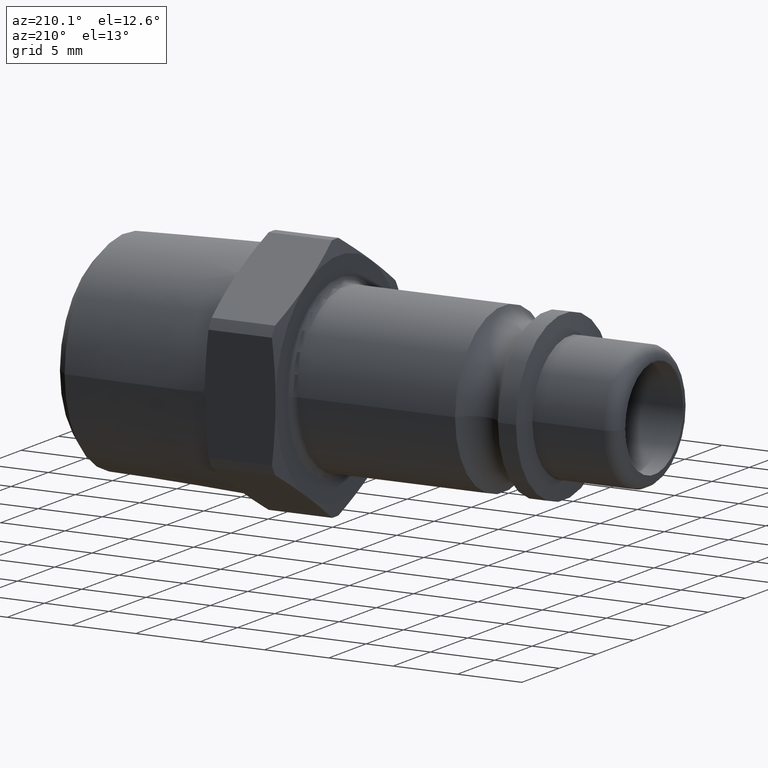
[diagram: clean part render]
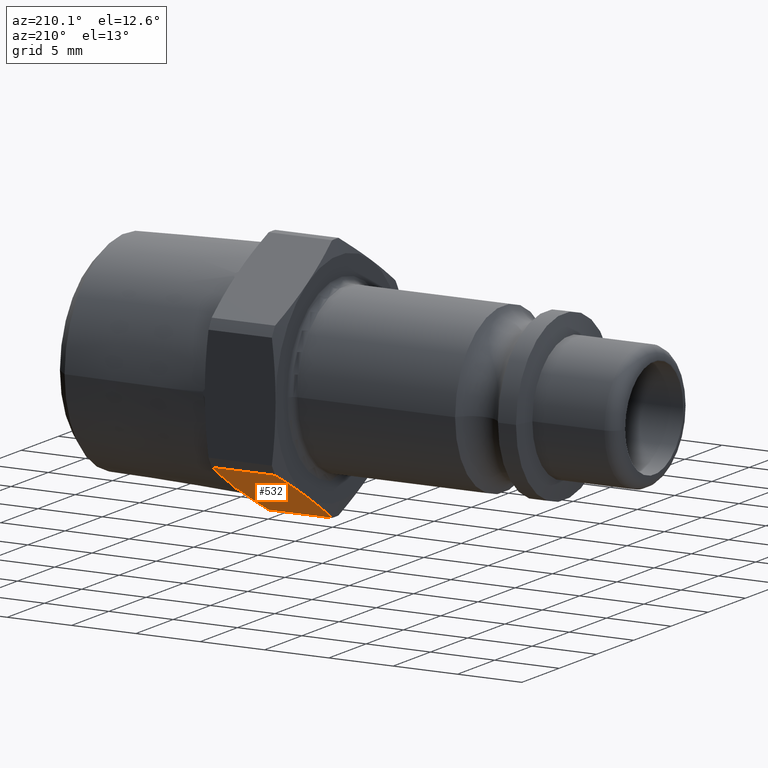
[diagram: same view with one face highlighted and labeled with its STEP entity id]
A machine part, auxiliary view. The second image highlights one B-rep face of the part: STEP entity #532.
In plain terms, the highlighted planar face has unit normal (0, -0.5, 0.866).
Its self-contained STEP definition (entity closure, byte-faithful):
#200=CARTESIAN_POINT('',(24.5,4.249999999999994,-7.361215932167733));
#201=VERTEX_POINT('',#200);
#282=CARTESIAN_POINT('',(30.0,3.996695662435906,-7.507461259647259));
#283=VERTEX_POINT('',#282);
#284=CARTESIAN_POINT('',(30.0,4.503304337564082,-7.214970604688206));
#285=VERTEX_POINT('',#284);
#286=CARTESIAN_POINT('',(30.0,3.996695662435963,-7.507461259647227));
#287=CARTESIAN_POINT('',(30.323676353333006,4.249999999999996,-7.361215932167734));
#288=CARTESIAN_POINT('',(30.0,4.503304337564027,-7.214970604688241));
#296=(BOUNDED_CURVE()B_SPLINE_CURVE(2,(#286,#287,#288),.UNSPECIFIED.,.F.,.U.)B_SPLINE_CURVE_WITH_KNOTS((3,3),(0.0,0.066860415325555),.UNSPECIFIED.)CURVE()GEOMETRIC_REPRESENTATION_ITEM()RATIONAL_B_SPLINE_CURVE((1.0,1.000591871786538,1.0))REPRESENTATION_ITEM(''));
#297=EDGE_CURVE('',#283,#285,#296,.T.);
#452=CARTESIAN_POINT('',(23.725998680709427,4.249999999999995,-7.361215932167733));
#453=DIRECTION('',(0.0,-0.499999999999999,0.866025403784439));
#454=DIRECTION('',(1.0,0.0,0.0));
#455=AXIS2_PLACEMENT_3D('',#452,#453,#454);
#456=PLANE('',#455);
#457=CARTESIAN_POINT('',(24.788045381863459,8.067455795421862,-5.157206801061425));
#458=VERTEX_POINT('',#457);
#459=CARTESIAN_POINT('',(24.788045381863459,8.067455795421846,-5.157206801061436));
#460=CARTESIAN_POINT('',(24.500000000000007,6.045207427999236,-6.32475244036116));
#461=CARTESIAN_POINT('',(24.500000000000007,4.249999999999994,-7.361215932167734));
#469=(BOUNDED_CURVE()B_SPLINE_CURVE(2,(#459,#460,#461),.UNSPECIFIED.,.F.,.U.)B_SPLINE_CURVE_WITH_KNOTS((3,3),(0.0,0.441955310884669),.UNSPECIFIED.)CURVE()GEOMETRIC_REPRESENTATION_ITEM()RATIONAL_B_SPLINE_CURVE((1.0,1.031133014754965,1.0))REPRESENTATION_ITEM(''));
#470=EDGE_CURVE('',#458,#201,#469,.T.);
#471=ORIENTED_EDGE('',*,*,#470,.F.);
#472=CARTESIAN_POINT('',(29.713302646458377,8.067455795421864,-5.157206801061424));
#473=VERTEX_POINT('',#472);
#474=CARTESIAN_POINT('',(29.713302646458374,8.067455795421862,-5.157206801061425));
#475=DIRECTION('',(-1.0,0.0,0.0));
#476=VECTOR('',#475,4.925257264594915);
#477=LINE('',#474,#476);
#478=EDGE_CURVE('',#473,#458,#477,.T.);
#479=ORIENTED_EDGE('',*,*,#478,.F.);
#480=CARTESIAN_POINT('',(30.0,4.503304337564046,-7.214970604688229));
#481=CARTESIAN_POINT('',(29.982160166443666,6.179917528561911,-6.246977527538737));
#482=CARTESIAN_POINT('',(29.713302646458377,8.067455795421859,-5.157206801061428));
#490=(BOUNDED_CURVE()B_SPLINE_CURVE(2,(#480,#481,#482),.UNSPECIFIED.,.F.,.U.)B_SPLINE_CURVE_WITH_KNOTS((3,3),(0.0,0.412719892440435),.UNSPECIFIED.)CURVE()GEOMETRIC_REPRESENTATION_ITEM()RATIONAL_B_SPLINE_CURVE((1.0,1.026959657015917,1.0))REPRESENTATION_ITEM(''));
#491=EDGE_CURVE('',#285,#473,#490,.T.);
#492=ORIENTED_EDGE('',*,*,#491,.F.);
#493=ORIENTED_EDGE('',*,*,#297,.F.);
#494=CARTESIAN_POINT('',(29.713302646458377,0.432544204578123,-9.565225063274042));
#495=VERTEX_POINT('',#494);
#496=CARTESIAN_POINT('',(29.713302646458377,0.432544204578129,-9.565225063274042));
#497=CARTESIAN_POINT('',(29.982160166443666,2.320082471438075,-8.475454336796734));
#498=CARTESIAN_POINT('',(30.0,3.996695662435942,-7.507461259647239));
#506=(BOUNDED_CURVE()B_SPLINE_CURVE(2,(#496,#497,#498),.UNSPECIFIED.,.F.,.U.)B_SPLINE_CURVE_WITH_KNOTS((3,3),(0.0,0.412719892440435),.UNSPECIFIED.)CURVE()GEOMETRIC_REPRESENTATION_ITEM()RATIONAL_B_SPLINE_CURVE((1.0,1.026959657015903,1.0))REPRESENTATION_ITEM(''));
#507=EDGE_CURVE('',#495,#283,#506,.T.);
#508=ORIENTED_EDGE('',*,*,#507,.F.);
#509=CARTESIAN_POINT('',(24.788045381863459,0.432544204578125,-9.565225063274042));
#510=VERTEX_POINT('',#509);
#511=CARTESIAN_POINT('',(24.788045381863459,0.432544204578125,-9.565225063274042));
#512=DIRECTION('',(1.0,0.0,0.0));
#513=VECTOR('',#512,4.925257264594915);
#514=LINE('',#511,#513);
#515=EDGE_CURVE('',#510,#495,#514,.T.);
#516=ORIENTED_EDGE('',*,*,#515,.F.);
#517=CARTESIAN_POINT('',(24.500000000000007,4.249999999999994,-7.361215932167734));
#518=CARTESIAN_POINT('',(24.500000000000007,2.454792572000755,-8.397679423974308));
#519=CARTESIAN_POINT('',(24.788045381863459,0.432544204578144,-9.565225063274031));
#527=(BOUNDED_CURVE()B_SPLINE_CURVE(2,(#517,#518,#519),.UNSPECIFIED.,.F.,.U.)B_SPLINE_CURVE_WITH_KNOTS((3,3),(0.441955310884669,0.883910621769338),.UNSPECIFIED.)CURVE()GEOMETRIC_REPRESENTATION_ITEM()RATIONAL_B_SPLINE_CURVE((1.0,1.031133014754977,1.0))REPRESENTATION_ITEM(''));
#528=EDGE_CURVE('',#201,#510,#527,.T.);
#529=ORIENTED_EDGE('',*,*,#528,.F.);
#530=EDGE_LOOP('',(#471,#479,#492,#493,#508,#516,#529));
#531=FACE_OUTER_BOUND('',#530,.T.);
#532=ADVANCED_FACE('',(#531),#456,.F.);